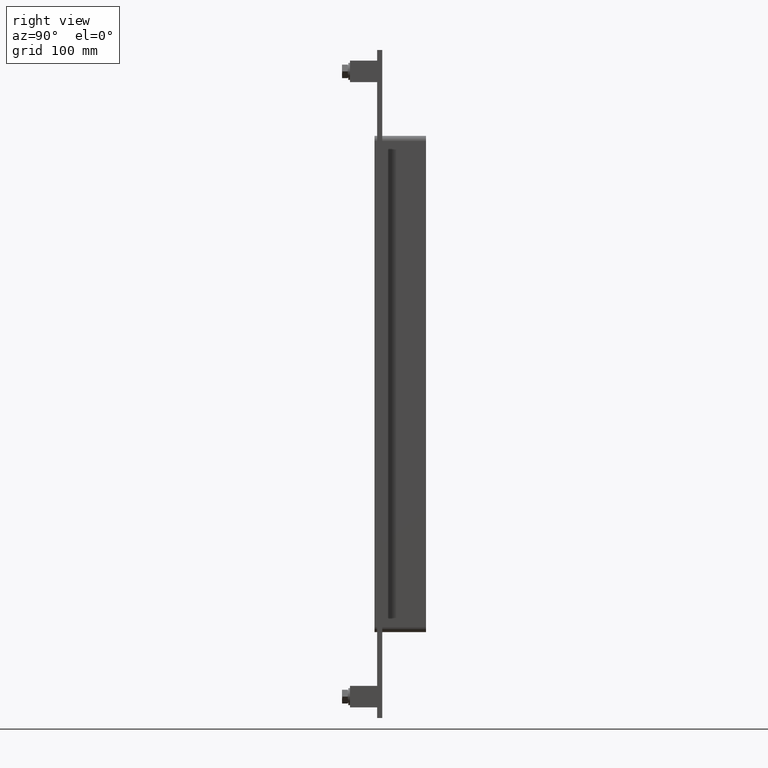
[diagram: clean part render]
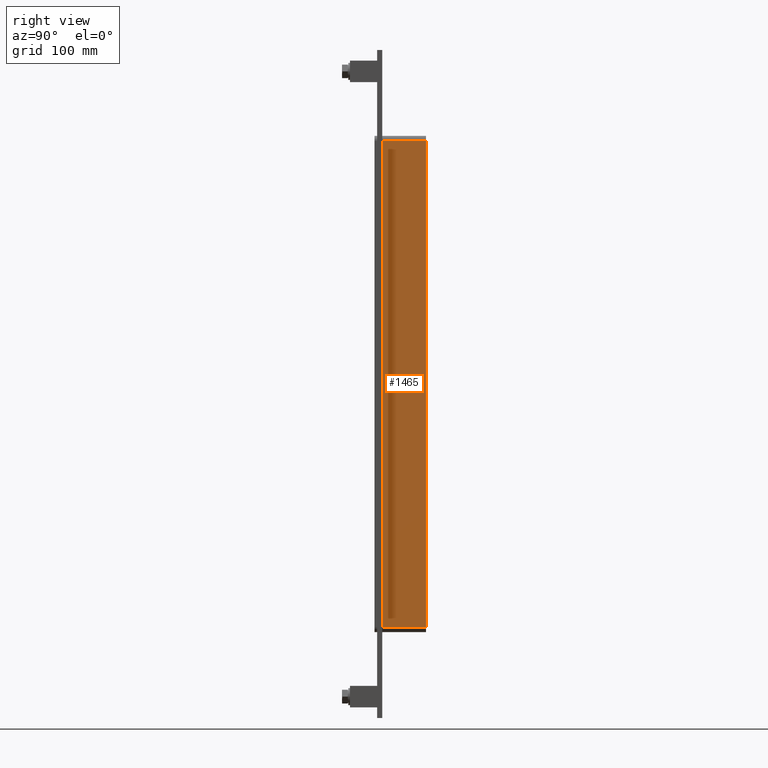
[diagram: same view with one face highlighted and labeled with its STEP entity id]
A machine part, right view. The second image highlights one B-rep face of the part: STEP entity #1465.
In plain terms, the highlighted planar face has unit normal (1, 0, 0).
Its self-contained STEP definition (entity closure, byte-faithful):
#750=CARTESIAN_POINT('',(66.249999999999986,6.000000000000001,-283.0));
#751=VERTEX_POINT('',#750);
#759=CARTESIAN_POINT('',(66.249999999999986,6.000000000000001,283.00000000000006));
#760=VERTEX_POINT('',#759);
#761=CARTESIAN_POINT('',(66.249999999999986,6.000000000000001,283.0));
#762=DIRECTION('',(0.0,0.0,-1.0));
#763=VECTOR('',#762,566.0);
#764=LINE('',#761,#763);
#765=EDGE_CURVE('',#760,#751,#764,.T.);
#1082=CARTESIAN_POINT('',(66.249999999999986,57.0,-283.0));
#1083=VERTEX_POINT('',#1082);
#1091=CARTESIAN_POINT('',(66.249999999999986,57.0,-283.0));
#1092=DIRECTION('',(0.0,-1.0,0.0));
#1093=VECTOR('',#1092,51.0);
#1094=LINE('',#1091,#1093);
#1095=EDGE_CURVE('',#1083,#751,#1094,.T.);
#1430=CARTESIAN_POINT('',(66.249999999999986,57.0,283.00000000000006));
#1431=VERTEX_POINT('',#1430);
#1432=CARTESIAN_POINT('',(66.249999999999986,6.000000000000001,283.00000000000006));
#1433=DIRECTION('',(0.0,1.0,0.0));
#1434=VECTOR('',#1433,51.0);
#1435=LINE('',#1432,#1434);
#1436=EDGE_CURVE('',#760,#1431,#1435,.T.);
#1449=CARTESIAN_POINT('',(66.249999999999986,0.0,289.00000000000006));
#1450=DIRECTION('',(1.0,0.0,0.0));
#1451=DIRECTION('',(0.0,0.0,-1.0));
#1452=AXIS2_PLACEMENT_3D('',#1449,#1450,#1451);
#1453=PLANE('',#1452);
#1454=ORIENTED_EDGE('',*,*,#765,.T.);
#1455=ORIENTED_EDGE('',*,*,#1095,.F.);
#1456=CARTESIAN_POINT('',(66.249999999999986,57.0,283.00000000000006));
#1457=DIRECTION('',(0.0,0.0,-1.0));
#1458=VECTOR('',#1457,566.0);
#1459=LINE('',#1456,#1458);
#1460=EDGE_CURVE('',#1431,#1083,#1459,.T.);
#1461=ORIENTED_EDGE('',*,*,#1460,.F.);
#1462=ORIENTED_EDGE('',*,*,#1436,.F.);
#1463=EDGE_LOOP('',(#1454,#1455,#1461,#1462));
#1464=FACE_OUTER_BOUND('',#1463,.T.);
#1465=ADVANCED_FACE('',(#1464),#1453,.T.);